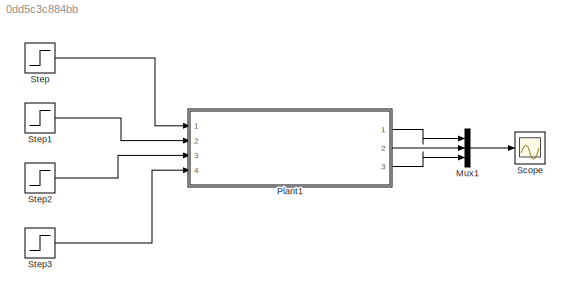
MODEL slx_0dd5c3c884bb
KIND model
BLOCK [Mux] Mux1
  DisplayOption = bar
  Inputs = 3
  Ports = [3, 1]
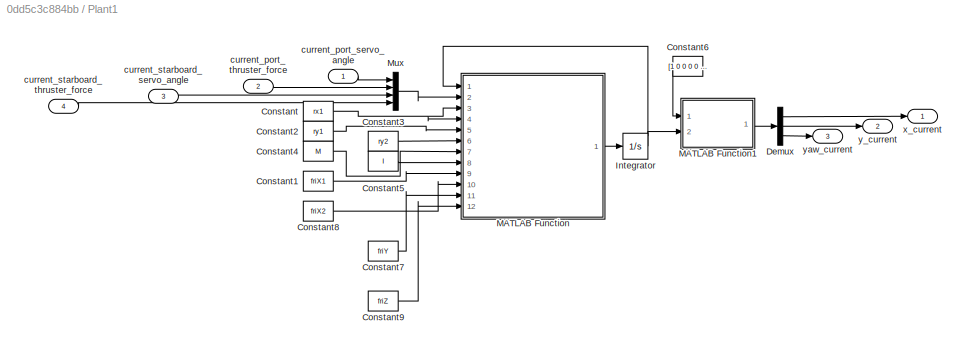
BLOCK [SubSystem] Plant1
  Ports = [4, 3]
  RequestExecContextInheritance = off
BLOCK [Constant] Plant1/Constant
  Value = rx1
BLOCK [Constant] Plant1/Constant1
  Value = friX1
BLOCK [Constant] Plant1/Constant2
  Value = ry1
BLOCK [Constant] Plant1/Constant3
  Value = ry2
BLOCK [Constant] Plant1/Constant4
  Value = M
BLOCK [Constant] Plant1/Constant5
  Value = I
BLOCK [Constant] Plant1/Constant6
  Value = [1 0 0 0 0 0;0 0 1 0 0 0;0 0 0 0 1 0]
BLOCK [Constant] Plant1/Constant7
  Value = friY
BLOCK [Constant] Plant1/Constant8
  Value = friX2
BLOCK [Constant] Plant1/Constant9
  Value = friZ
BLOCK [Demux] Plant1/Demux
  DisplayOption = bar
  Outputs = 3
  Ports = [1, 3]
BLOCK [Integrator] Plant1/Integrator
  InitialCondition = [0 0 0 0 0 0]
  Ports = [1, 1]
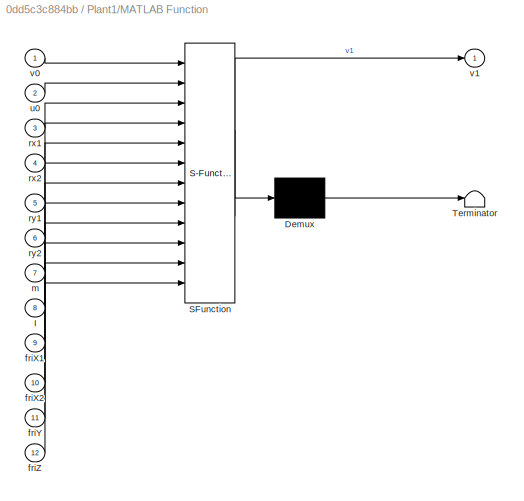
BLOCK [SubSystem] Plant1/MATLAB Function
  ErrorFcn = Stateflow.Translate.translate
  PermitHierarchicalResolution = ExplicitOnly
  Ports = [12, 1]
  RequestExecContextInheritance = off
  SFBlockType = MATLAB Function
  TreatAsAtomicUnit = on
BLOCK [Demux] Plant1/MATLAB Function/ Demux 
  Outputs = 1
  Ports = [1, 1]
BLOCK [S-Function] Plant1/MATLAB Function/ SFunction 
  EnableBusSupport = on
  FunctionName = sf_sfun
  PortCounts = [12 2]
  Ports = [12, 2]
  Tag = Stateflow S-Function test 5
BLOCK [Terminator] Plant1/MATLAB Function/ Terminator 
BLOCK [Inport] Plant1/MATLAB Function/I
  IconDisplay = Port number
  Port = 8
BLOCK [Inport] Plant1/MATLAB Function/friX1
  IconDisplay = Port number
  Port = 9
BLOCK [Inport] Plant1/MATLAB Function/friX2
  IconDisplay = Port number
  Port = 10
BLOCK [Inport] Plant1/MATLAB Function/friY
  IconDisplay = Port number
  Port = 11
BLOCK [Inport] Plant1/MATLAB Function/friZ
  IconDisplay = Port number
  Port = 12
BLOCK [Inport] Plant1/MATLAB Function/m
  IconDisplay = Port number
  Port = 7
BLOCK [Inport] Plant1/MATLAB Function/rx1
  IconDisplay = Port number
  Port = 3
BLOCK [Inport] Plant1/MATLAB Function/rx2
  IconDisplay = Port number
  Port = 4
BLOCK [Inport] Plant1/MATLAB Function/ry1
  IconDisplay = Port number
  Port = 5
BLOCK [Inport] Plant1/MATLAB Function/ry2
  IconDisplay = Port number
  Port = 6
BLOCK [Inport] Plant1/MATLAB Function/u0
  IconDisplay = Port number
  Port = 2
BLOCK [Inport] Plant1/MATLAB Function/v0
  IconDisplay = Port number
BLOCK [Outport] Plant1/MATLAB Function/v1
  IconDisplay = Port number
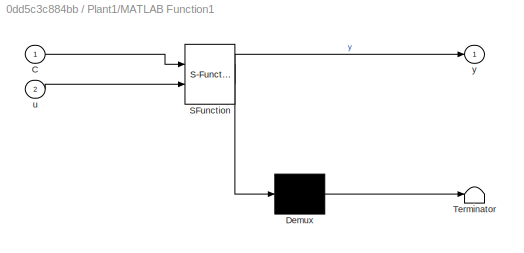
BLOCK [SubSystem] Plant1/MATLAB Function1
  ErrorFcn = Stateflow.Translate.translate
  PermitHierarchicalResolution = ExplicitOnly
  Ports = [2, 1]
  RequestExecContextInheritance = off
  SFBlockType = MATLAB Function
  TreatAsAtomicUnit = on
BLOCK [Demux] Plant1/MATLAB Function1/ Demux 
  Outputs = 1
  Ports = [1, 1]
BLOCK [S-Function] Plant1/MATLAB Function1/ SFunction 
  EnableBusSupport = on
  FunctionName = sf_sfun
  PortCounts = [2 2]
  Ports = [2, 2]
  Tag = Stateflow S-Function test 6
BLOCK [Terminator] Plant1/MATLAB Function1/ Terminator 
BLOCK [Inport] Plant1/MATLAB Function1/C
  IconDisplay = Port number
BLOCK [Inport] Plant1/MATLAB Function1/u
  IconDisplay = Port number
  Port = 2
BLOCK [Outport] Plant1/MATLAB Function1/y
  IconDisplay = Port number
BLOCK [Mux] Plant1/Mux
  DisplayOption = bar
  Ports = [4, 1]
BLOCK [Inport] Plant1/current_port_servo_angle
  IconDisplay = Port number
BLOCK [Inport] Plant1/current_port_thruster_force
  IconDisplay = Port number
  Port = 2
BLOCK [Inport] Plant1/current_starboard_servo_angle
  IconDisplay = Port number
  Port = 3
BLOCK [Inport] Plant1/current_starboard_thruster_force
  IconDisplay = Port number
  Port = 4
BLOCK [Outport] Plant1/x_current
  IconDisplay = Port number
BLOCK [Outport] Plant1/y_current
  IconDisplay = Port number
  Port = 2
BLOCK [Outport] Plant1/yaw_current
  IconDisplay = Port number
  Port = 3
BLOCK [Scope] Scope
  Floating = off
  NumInputPorts = 1
  Ports = [1]
  ShowLegends = off
BLOCK [Step] Step
  After = 0
  SampleTime = 0
BLOCK [Step] Step1
  After = 0
  Before = 2
  SampleTime = 0
BLOCK [Step] Step2
  After = 0
  SampleTime = 0
BLOCK [Step] Step3
  After = 0
  Before = 2
  SampleTime = 0
LINE Mux1:1 -> Scope:1
LINE Plant1/Constant1:1 -> Plant1/MATLAB Function:9
LINE Plant1/Constant2:1 -> Plant1/MATLAB Function:5
LINE Plant1/Constant3:1 -> Plant1/MATLAB Function:6
LINE Plant1/Constant4:1 -> Plant1/MATLAB Function:7
LINE Plant1/Constant5:1 -> Plant1/MATLAB Function:8
LINE Plant1/Constant6:1 -> Plant1/MATLAB Function1:1
LINE Plant1/Constant7:1 -> Plant1/MATLAB Function:11
LINE Plant1/Constant8:1 -> Plant1/MATLAB Function:10
LINE Plant1/Constant9:1 -> Plant1/MATLAB Function:12
NET Plant1/Constant:1 -> Plant1/MATLAB Function:3, Plant1/MATLAB Function:4
LINE Plant1/Demux:1 -> Plant1/x_current:1
LINE Plant1/Demux:2 -> Plant1/y_current:1
LINE Plant1/Demux:3 -> Plant1/yaw_current:1
NET Plant1/Integrator:1 -> Plant1/MATLAB Function1:2, Plant1/MATLAB Function:1
LINE Plant1/MATLAB Function1:1 -> Plant1/Demux:1
LINE Plant1/MATLAB Function:1 -> Plant1/Integrator:1
LINE Plant1/Mux:1 -> Plant1/MATLAB Function:2
LINE Plant1/current_port_servo_angle:1 -> Plant1/Mux:1
LINE Plant1/current_port_thruster_force:1 -> Plant1/Mux:2
LINE Plant1/current_starboard_servo_angle:1 -> Plant1/Mux:3
LINE Plant1/current_starboard_thruster_force:1 -> Plant1/Mux:4
LINE Plant1:1 -> Mux1:1
LINE Plant1:2 -> Mux1:2
LINE Plant1:3 -> Mux1:3
LINE Step1:1 -> Plant1:2
LINE Step2:1 -> Plant1:3
LINE Step3:1 -> Plant1:4
LINE Step:1 -> Plant1:1
note: NET lines group one-source signal fan-out (src -> all destinations, sorted); 1:1 wires keep LINE
